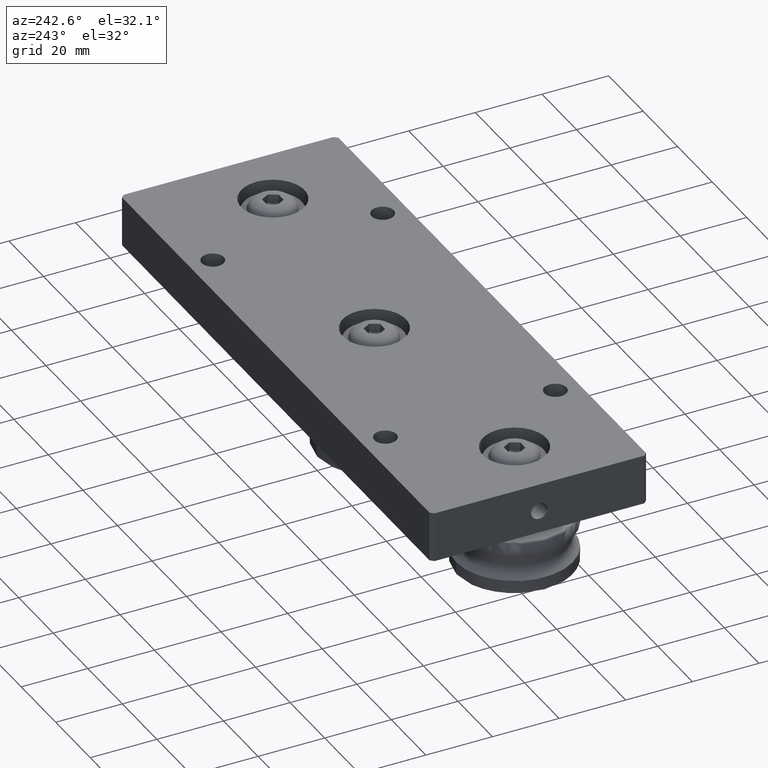
[diagram: clean part render]
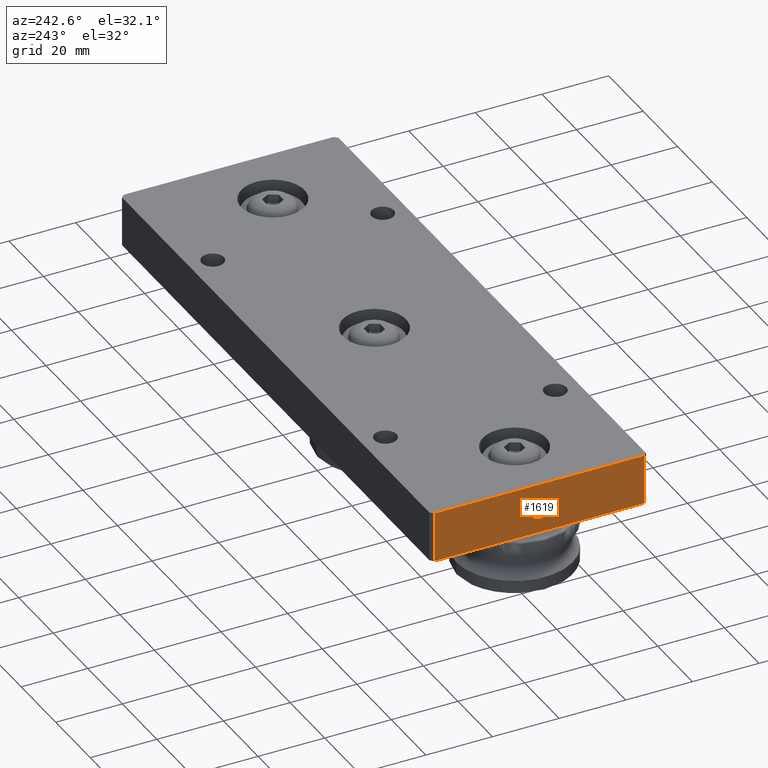
[diagram: same view with one face highlighted and labeled with its STEP entity id]
A machine part, auxiliary view. The second image highlights one B-rep face of the part: STEP entity #1619.
In plain terms, the highlighted planar face has unit normal (-1, -0, 0).
Its self-contained STEP definition (entity closure, byte-faithful):
#179=FACE_BOUND('',#412,.T.);
#206=CIRCLE('',#1887,2.4585);
#300=FACE_OUTER_BOUND('',#411,.T.);
#411=EDGE_LOOP('',(#1132,#1133,#1134,#1135));
#412=EDGE_LOOP('',(#1136));
#536=LINE('',#2614,#644);
#537=LINE('',#2617,#645);
#544=LINE('',#2645,#652);
#545=LINE('',#2646,#653);
#644=VECTOR('',#2091,10.);
#645=VECTOR('',#2094,10.);
#652=VECTOR('',#2117,10.);
#653=VECTOR('',#2118,10.);
#749=VERTEX_POINT('',#2607);
#752=VERTEX_POINT('',#2612);
#753=VERTEX_POINT('',#2616);
#766=VERTEX_POINT('',#2644);
#767=VERTEX_POINT('',#2647);
#891=EDGE_CURVE('',#752,#749,#536,.T.);
#892=EDGE_CURVE('',#749,#753,#537,.T.);
#906=EDGE_CURVE('',#766,#752,#544,.T.);
#907=EDGE_CURVE('',#753,#766,#545,.T.);
#908=EDGE_CURVE('',#767,#767,#206,.T.);
#1132=ORIENTED_EDGE('',*,*,#891,.F.);
#1133=ORIENTED_EDGE('',*,*,#906,.F.);
#1134=ORIENTED_EDGE('',*,*,#907,.F.);
#1135=ORIENTED_EDGE('',*,*,#892,.F.);
#1136=ORIENTED_EDGE('',*,*,#908,.T.);
#1565=PLANE('',#1886);
#1619=ADVANCED_FACE('',(#300,#179),#1565,.T.);
#1886=AXIS2_PLACEMENT_3D('',#2643,#2115,#2116);
#1887=AXIS2_PLACEMENT_3D('',#2648,#2119,#2120);
#2091=DIRECTION('',(0.,0.,-1.));
#2094=DIRECTION('',(-5.46571335200077E-16,1.,0.));
#2115=DIRECTION('center_axis',(-1.,-5.46571335200077E-16,0.));
#2116=DIRECTION('ref_axis',(5.46571335200077E-16,-1.,0.));
#2117=DIRECTION('',(5.46571335200077E-16,-1.,0.));
#2118=DIRECTION('',(0.,0.,1.));
#2119=DIRECTION('center_axis',(1.,5.46571335200077E-16,0.));
#2120=DIRECTION('ref_axis',(0.,0.,1.));
#2607=CARTESIAN_POINT('',(-90.,-31.5,-7.5));
#2612=CARTESIAN_POINT('',(-90.,-31.5,7.5));
#2614=CARTESIAN_POINT('',(-90.,-31.5,0.));
#2616=CARTESIAN_POINT('',(-90.,31.5,-7.5));
#2617=CARTESIAN_POINT('',(-90.,32.5,-7.5));
#2643=CARTESIAN_POINT('Origin',(-90.,32.5,0.));
#2644=CARTESIAN_POINT('',(-90.,31.5,7.5));
#2645=CARTESIAN_POINT('',(-90.,32.5,7.5));
#2646=CARTESIAN_POINT('',(-90.,31.5,0.));
#2647=CARTESIAN_POINT('',(-90.,-3.01079415570375E-16,-3.2585));
#2648=CARTESIAN_POINT('Origin',(-90.,2.46519032881566E-30,-0.800000000000001));